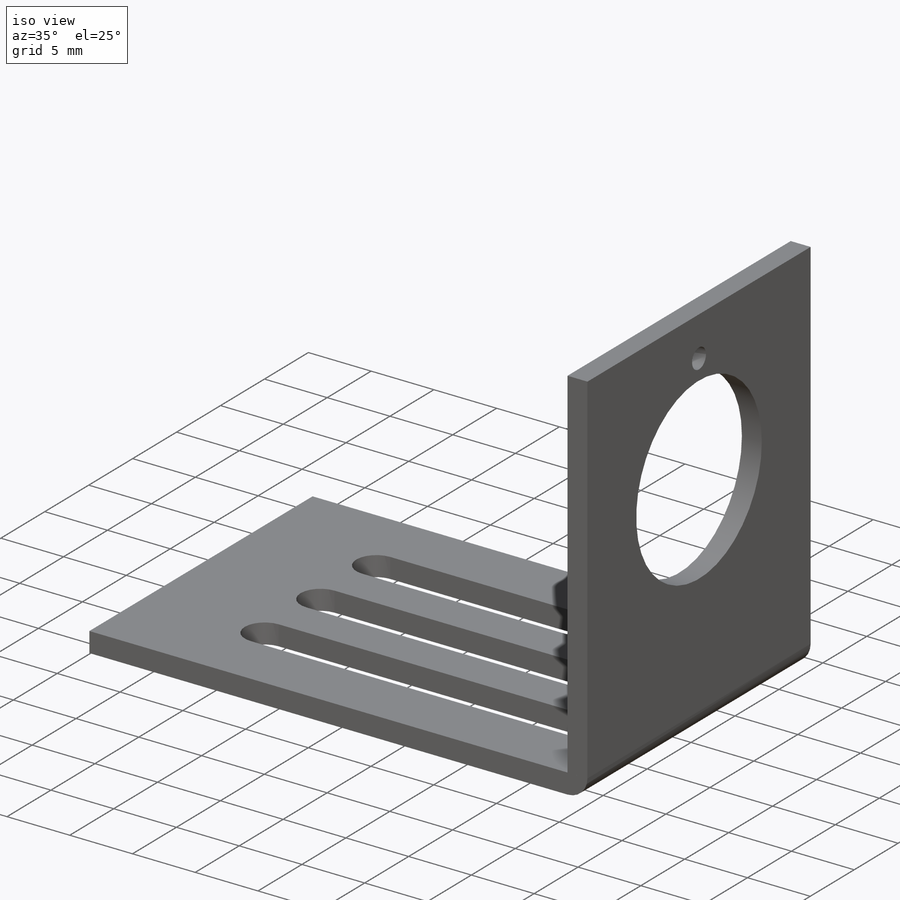
[diagram: iso view]
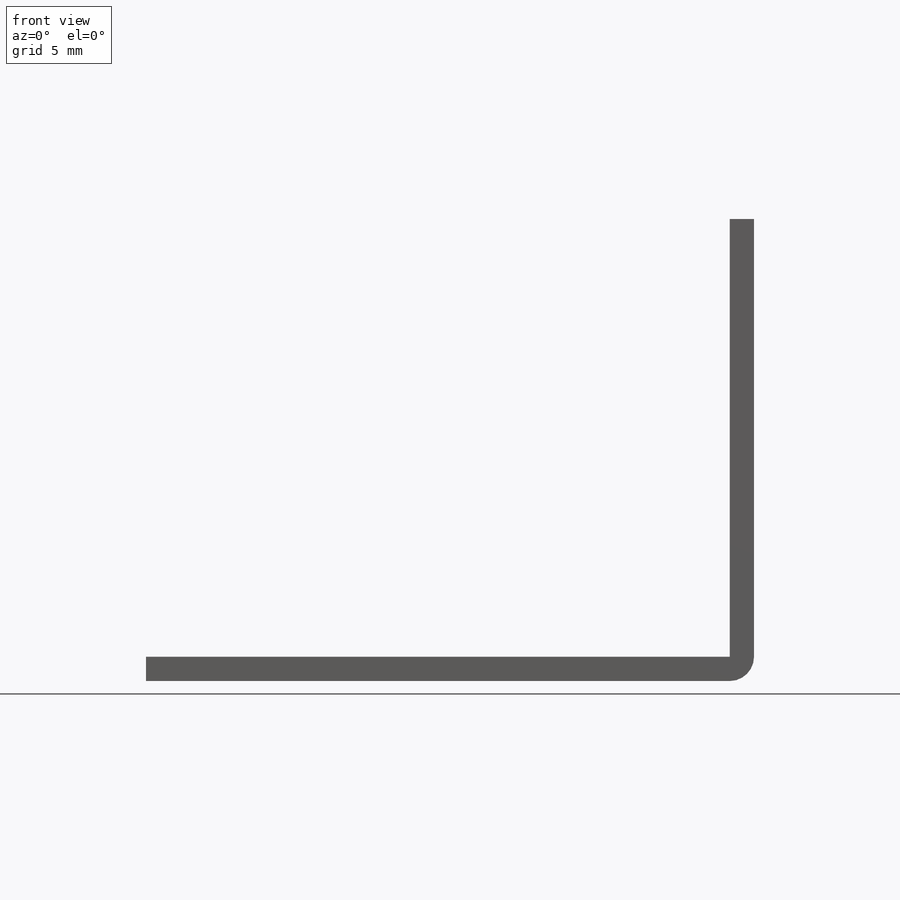
[diagram: front view]
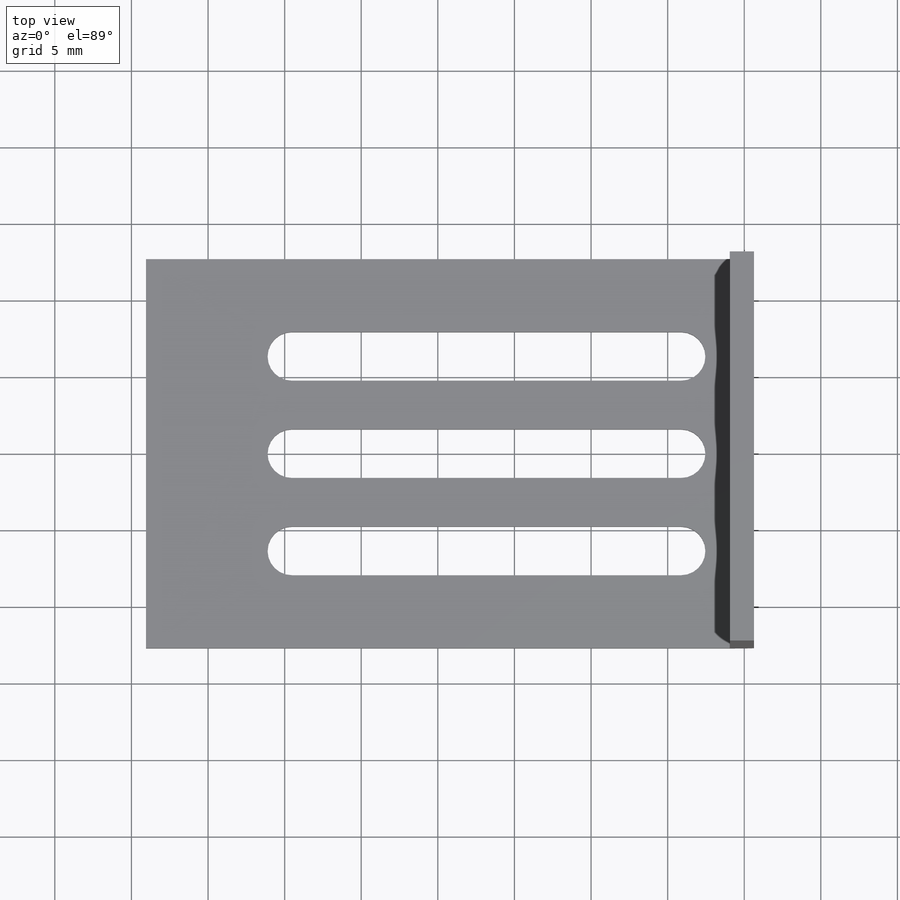
[diagram: top view]
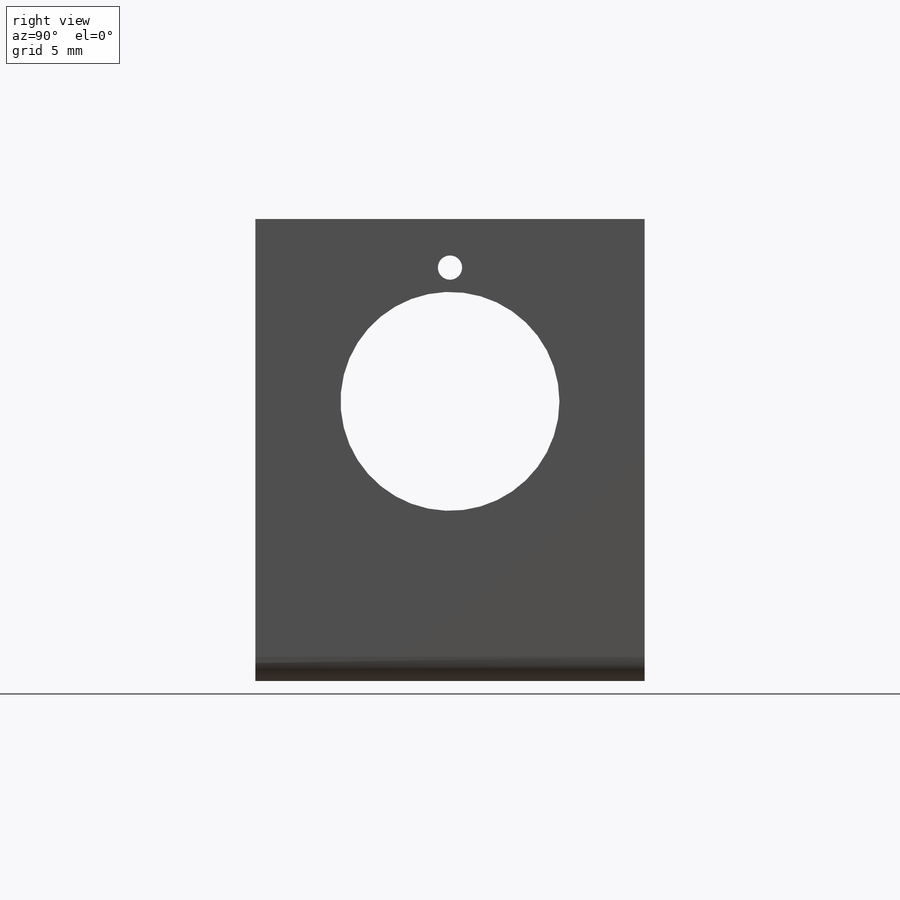
[diagram: right view]
SOLIDWORKS PART (.sldprt)
format: sldprt  version: not decoded by parser v0  size: 211,456 bytes
history: native  units: mm
features: sketch x5, extrude x3, cut_extrude x2, material x1, pattern_linear x1 (+11 scaffold rows collapsed)
feature tree (23):
  scaffold x11  (default folders/planes/origin — collapsed)
  material  "Material <not specified>"
  sketch  "Sketch1"  dims[D1=38.1mm D2=25.4mm]
  extrude  "Boss-Extrude1"  Depth=1.5875mm
  sketch  "Sketch2"  dims[D1=1.5875mm D2=28.575mm]
  extrude  "Boss-Extrude2"  Depth=25.4mm
  sketch  "Sketch3"
  extrude  "Boss-Extrude3"  Depth=25.4mm
  sketch  "Sketch4"  dims[c1.D1=14.2875mm c1.D2=14.2875mm c1.D3=1.5875mm c1.D4=14.2875mm c2.D2=~11.90625mm c2.D4=~8.73125mm]
  cut_extrude  "Cut-Extrude1"  Depth=25.4mm
  sketch  "Sketch5"  dims[c1.D2=~1.150155mm c1.D4=~1.150155mm c1.D1=25.4mm c2.D2=4.7625mm c2.D3=3.175mm c3.D2=3.175mm c3.D3=4.7625mm]
  cut_extrude  "Cut-Extrude2"  Depth=25.4mm
  pattern_linear  "LPattern1"  Count1=3 Count2=1 Spacing1=6.35mm Spacing2=2.54mm
decode coverage: 10 of 11 modeling features carry decoded parameters
note: ~ marks probable driven/reference dimensions
note: suppression state not decoded; provenance and decode notes live in map.json
